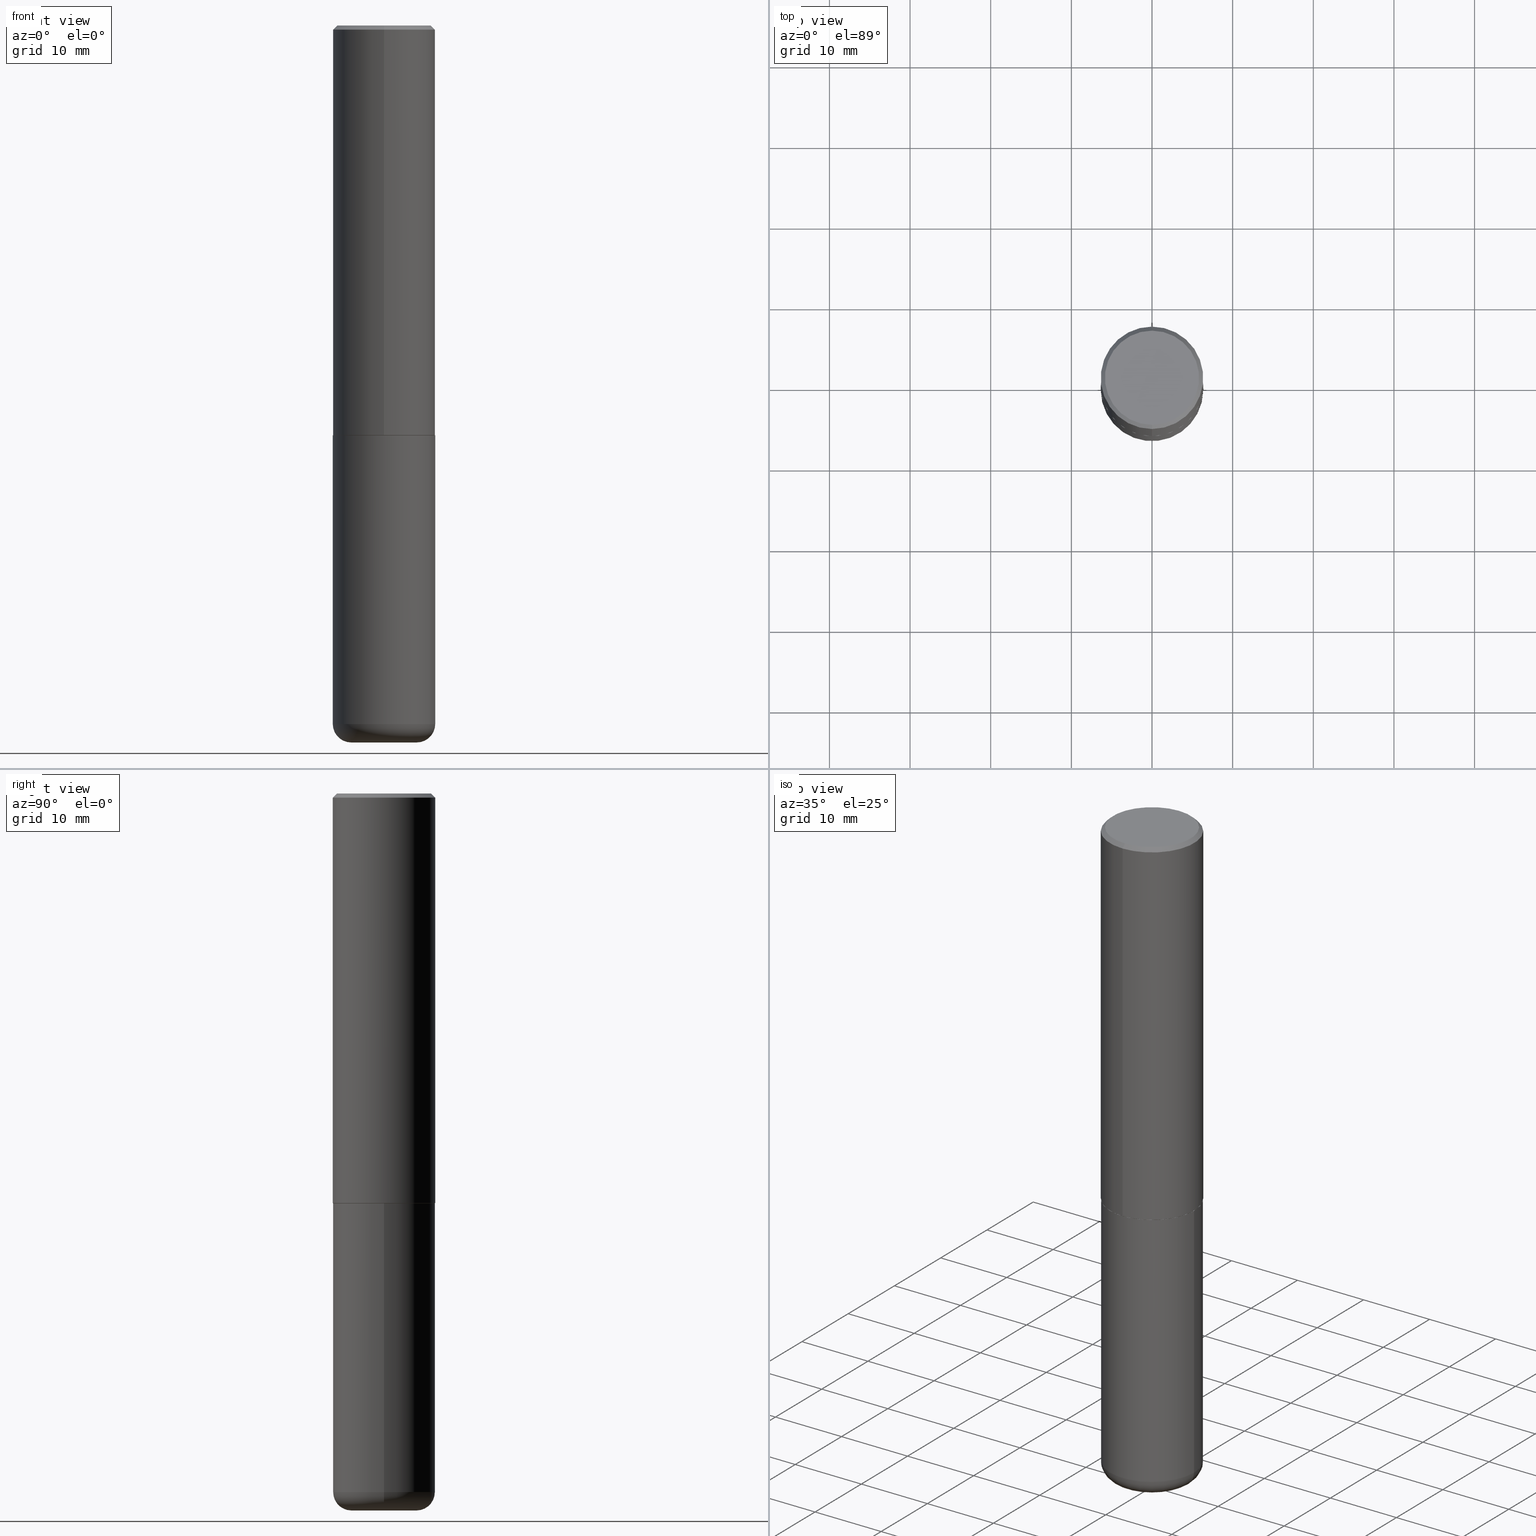
[diagram: canonical four-view strip — front | top / right | iso, engineering-drawing reading convention]
A machine part, canonical four-view strip (front | top / right | iso — engineering-drawing reading convention). The complete STEP part file that produces these views, byte-faithful:
ISO-10303-21;
HEADER;
FILE_DESCRIPTION (( 'STEP AP203' ),
    '1' );
FILE_NAME ('37547.STEP',
    '2024-03-02T04:01:04',
    ( '' ),
    ( '' ),
    'SwSTEP 2.0',
    'SolidWorks 2023',
    '' );
FILE_SCHEMA (( 'CONFIG_CONTROL_DESIGN' ));
ENDSEC;

DATA;
#1 = ORIENTED_EDGE ( 'NONE', *, *, #355, .F. ) ;
#2 = ORIENTED_EDGE ( 'NONE', *, *, #416, .F. ) ;
#3 = CC_DESIGN_DATE_AND_TIME_ASSIGNMENT ( #272, #251, ( #368 ) ) ;
#4 = DIRECTION ( 'NONE',  ( -2.445468806185136597E-29, 3.491481338843145583E-15, 1.000000000000000000 ) ) ;
#5 = TOROIDAL_SURFACE ( 'NONE', #114, 0.1600000000000000033, 0.08999999999999967748 ) ;
#6 = AXIS2_PLACEMENT_3D ( 'NONE', #207, #199, #140 ) ;
#7 = DIRECTION ( 'NONE',  ( -6.982962677686265922E-15, -1.000000000000000000, 3.483106191921935554E-15 ) ) ;
#8 = FACE_OUTER_BOUND ( 'NONE', #264, .T. ) ;
#9 = CALENDAR_DATE ( 2024, 1, 3 ) ;
#10 = CARTESIAN_POINT ( 'NONE',  ( -0.2500000000000000000, -7.668100182170457762E-15, -1.999999999999999778 ) ) ;
#11 = EDGE_CURVE ( 'NONE', #385, #120, #362, .T. ) ;
#12 = CARTESIAN_POINT ( 'NONE',  ( 4.891474366573822799E-29, -6.982194015116654415E-15, -1.999999999999999778 ) ) ;
#13 = APPROVAL_STATUS ( 'not_yet_approved' ) ;
#14 = DIRECTION ( 'NONE',  ( -2.445468806185136877E-29, 3.491481338843145188E-15, 1.000000000000000000 ) ) ;
#15 = APPROVAL ( #195, 'UNSPECIFIED' ) ;
#16 = CARTESIAN_POINT ( 'NONE',  ( 4.891474366573836672E-31, -6.982194015116674235E-17, -0.02000000000000005593 ) ) ;
#17 = APPROVAL_DATE_TIME ( #288, #40 ) ;
#18 = DIRECTION ( 'NONE',  ( -2.445737183286911680E-29, 3.491097007558327602E-15, 1.000000000000000000 ) ) ;
#19 = CONICAL_SURFACE ( 'NONE', #417, 0.2500000000000000000, 0.7853981633974481680 ) ;
#20 = AXIS2_PLACEMENT_3D ( 'NONE', #252, #403, #367 ) ;
#21 =( LENGTH_UNIT ( ) NAMED_UNIT ( * ) SI_UNIT ( $, .METRE. ) );
#22 = FACE_OUTER_BOUND ( 'NONE', #229, .T. ) ;
#23 = EDGE_CURVE ( 'NONE', #193, #260, #200, .T. ) ;
#24 = LOCAL_TIME ( 23, 1, 4.000000000000000000, #107 ) ;
#25 = AXIS2_PLACEMENT_3D ( 'NONE', #263, #389, #384 ) ;
#26 =( NAMED_UNIT ( * ) PLANE_ANGLE_UNIT ( ) SI_UNIT ( $, .RADIAN. ) );
#27 = APPLICATION_PROTOCOL_DEFINITION ( 'international standard', 'config_control_design', 1994, #128 ) ;
#28 = CC_DESIGN_APPROVAL ( #40, ( #50 ) ) ;
#29 = ORIENTED_EDGE ( 'NONE', *, *, #220, .T. ) ;
#30 = LOCAL_TIME ( 23, 1, 4.000000000000000000, #221 ) ;
#31 = ORIENTED_EDGE ( 'NONE', *, *, #108, .T. ) ;
#32 = EDGE_CURVE ( 'NONE', #236, #121, #57, .T. ) ;
#33 = ORIENTED_EDGE ( 'NONE', *, *, #300, .T. ) ;
#34 = LINE ( 'NONE', #135, #49 ) ;
#35 = CIRCLE ( 'NONE', #386, 0.08999999999999964972 ) ;
#36 = AXIS2_PLACEMENT_3D ( 'NONE', #331, #274, #143 ) ;
#37 = CARTESIAN_POINT ( 'NONE',  ( 4.890937612370272633E-29, -6.982962677686290376E-15, -1.999999999999999778 ) ) ;
#38 = PERSON_AND_ORGANIZATION_ROLE ( 'design_supplier' ) ;
#39 = DIRECTION ( 'NONE',  ( 2.438088387897960049E-29, -3.491481338843145188E-15, -1.000000000000000000 ) ) ;
#40 = APPROVAL ( #350, 'UNSPECIFIED' ) ;
#41 = DIRECTION ( 'NONE',  ( 1.000000000000000000, -6.982962677686259611E-15, 0.000000000000000000 ) ) ;
#42 = CARTESIAN_POINT ( 'NONE',  ( 0.000000000000000000, 0.000000000000000000, 0.000000000000000000 ) ) ;
#43 = FACE_OUTER_BOUND ( 'NONE', #129, .T. ) ;
#44 = CARTESIAN_POINT ( 'NONE',  ( 8.559140821647976968E-29, -1.222018468595100619E-14, -3.499999999999999112 ) ) ;
#45 = CC_DESIGN_PERSON_AND_ORGANIZATION_ASSIGNMENT ( #72, #333, ( #201 ) ) ;
#46 = FACE_OUTER_BOUND ( 'NONE', #233, .T. ) ;
#47 = CARTESIAN_POINT ( 'NONE',  ( -1.646519519465166968E-15, -0.2299999999999999822, 7.772528406023046093E-16 ) ) ;
#48 = LINE ( 'NONE', #304, #284 ) ;
#49 = VECTOR ( 'NONE', #14, 39.37007874015748143 ) ;
#50 = SECURITY_CLASSIFICATION ( '', '', #405 ) ;
#51 = EDGE_CURVE ( 'NONE', #294, #121, #136, .T. ) ;
#52 = LINE ( 'NONE', #116, #187 ) ;
#53 = ORIENTED_EDGE ( 'NONE', *, *, #183, .T. ) ;
#54 = AXIS2_PLACEMENT_3D ( 'NONE', #82, #182, #411 ) ;
#55 = CARTESIAN_POINT ( 'NONE',  ( 4.889028629390535480E-29, -6.978702918109095527E-15, -1.998999999999999666 ) ) ;
#56 = APPROVAL_ROLE ( '' ) ;
#57 = CIRCLE ( 'NONE', #240, 0.2500000000000000000 ) ;
#58 = ADVANCED_FACE ( 'NONE', ( #43 ), #306, .T. ) ;
#59 = ORIENTED_EDGE ( 'NONE', *, *, #183, .F. ) ;
#60 = ORIENTED_EDGE ( 'NONE', *, *, #119, .T. ) ;
#61 = APPROVAL_PERSON_ORGANIZATION ( #388, #15, #296 ) ;
#62 = ORIENTED_EDGE ( 'NONE', *, *, #234, .T. ) ;
#63 = CC_DESIGN_PERSON_AND_ORGANIZATION_ASSIGNMENT ( #212, #312, ( #50 ) ) ;
#64 = CARTESIAN_POINT ( 'NONE',  ( 4.891474366573836672E-31, -6.982194015116674235E-17, -0.02000000000000005593 ) ) ;
#65 = EDGE_LOOP ( 'NONE', ( #98, #358, #62, #59 ) ) ;
#66 = CARTESIAN_POINT ( 'NONE',  ( 0.1600000000000000033, -1.333745871438080791E-14, -3.499999999999999112 ) ) ;
#67 = CARTESIAN_POINT ( 'NONE',  ( -1.745740669421519543E-15, -0.2500000000000072164, -1.998999999999998778 ) ) ;
#68 = EDGE_CURVE ( 'NONE', #260, #193, #266, .T. ) ;
#69 = CARTESIAN_POINT ( 'NONE',  ( 8.339048629091315302E-29, -1.190595136545512608E-14, -3.410000000000000142 ) ) ;
#70 = DIRECTION ( 'NONE',  ( 1.000000000000000000, -6.982962677686269077E-15, 0.000000000000000000 ) ) ;
#71 = CARTESIAN_POINT ( 'NONE',  ( 1.772804125721499659E-15, 0.2489999999999930325, -2.000000000000000444 ) ) ;
#72 = PERSON_AND_ORGANIZATION ( #83, #96 ) ;
#73 = CARTESIAN_POINT ( 'NONE',  ( 4.891474366573836672E-31, -6.982194015116674235E-17, -0.02000000000000005593 ) ) ;
#74 = CC_DESIGN_PERSON_AND_ORGANIZATION_ASSIGNMENT ( #159, #262, ( #87 ) ) ;
#75 = CARTESIAN_POINT ( 'NONE',  ( -1.715124499442882299E-15, -0.2500000000000000555, -0.01999999999999918510 ) ) ;
#76 = CONICAL_SURFACE ( 'NONE', #165, 0.2489999999999999991, 0.7853981633975507526 ) ;
#77 = LOCAL_TIME ( 23, 1, 4.000000000000000000, #131 ) ;
#78 = DIRECTION ( 'NONE',  ( -2.445468806185136597E-29, 3.491481338843145583E-15, 1.000000000000000000 ) ) ;
#79 = CLOSED_SHELL ( 'NONE', ( #149, #382, #402, #345, #295, #197 ) ) ;
#80 = CARTESIAN_POINT ( 'NONE',  ( -1.738757706743831162E-15, -0.2490000000000069658, -1.999999999999998890 ) ) ;
#81 = DIRECTION ( 'NONE',  ( 6.982962677686265922E-15, 1.000000000000000000, -3.483106191921935554E-15 ) ) ;
#82 = CARTESIAN_POINT ( 'NONE',  ( 4.891474366573822799E-29, -6.982194015116654415E-15, -1.999999999999999778 ) ) ;
#83 = PERSON ( 'UNSPECIFIED', 'UNSPECIFIED', 'UNSPECIFIED', ('UNSPECIFIED'), ('UNSPECIFIED'), ('UNSPECIFIED') ) ;
#84 = ADVANCED_FACE ( 'NONE', ( #395 ), #76, .T. ) ;
#85 = CONICAL_SURFACE ( 'NONE', #342, 0.2500000000000000000, 0.7853981633974481680 ) ;
#86 = CARTESIAN_POINT ( 'NONE',  ( 1.745740669421566875E-15, 0.2499999999999999167, -0.02000000000000092676 ) ) ;
#87 = PRODUCT ( '37547', '37547', '', ( #265 ) ) ;
#88 = DIRECTION ( 'NONE',  ( -2.445737183286911680E-29, 3.491097007558327602E-15, 1.000000000000000000 ) ) ;
#89 = ORIENTED_EDGE ( 'NONE', *, *, #147, .F. ) ;
#90 = CIRCLE ( 'NONE', #163, 0.2500000000000000000 ) ;
#91 = EDGE_LOOP ( 'NONE', ( #257, #31, #353, #225 ) ) ;
#92 = CARTESIAN_POINT ( 'NONE',  ( 4.891474366573822799E-29, -6.982194015116654415E-15, -1.999999999999999778 ) ) ;
#93 = ORIENTED_EDGE ( 'NONE', *, *, #126, .F. ) ;
#94 = ADVANCED_FACE ( 'NONE', ( #396 ), #19, .T. ) ;
#95 = AXIS2_PLACEMENT_3D ( 'NONE', #173, #341, #218 ) ;
#96 = ORGANIZATION ( 'UNSPECIFIED', 'UNSPECIFIED', '' ) ;
#97 = ORIENTED_EDGE ( 'NONE', *, *, #126, .T. ) ;
#98 = ORIENTED_EDGE ( 'NONE', *, *, #307, .F. ) ;
#99 = DIRECTION ( 'NONE',  ( 1.000000000000000000, -6.982962677686259611E-15, 0.000000000000000000 ) ) ;
#100 = EDGE_CURVE ( 'NONE', #385, #413, #34, .T. ) ;
#101 = CARTESIAN_POINT ( 'NONE',  ( 1.745740669421566875E-15, 0.2499999999999999167, -0.02000000000000092676 ) ) ;
#102 = DIRECTION ( 'NONE',  ( 2.445737183286911680E-29, -3.491097007558327602E-15, -1.000000000000000000 ) ) ;
#103 = AXIS2_PLACEMENT_3D ( 'NONE', #360, #364, #70 ) ;
#104 =( GEOMETRIC_REPRESENTATION_CONTEXT ( 3 ) GLOBAL_UNCERTAINTY_ASSIGNED_CONTEXT ( ( #196 ) ) GLOBAL_UNIT_ASSIGNED_CONTEXT ( ( #254, #26, #217 ) ) REPRESENTATION_CONTEXT ( 'NONE', 'WORKASPACE' ) );
#105 = PLANE ( 'NONE',  #171 ) ;
#106 = DIRECTION ( 'NONE',  ( -6.982962677686265922E-15, -1.000000000000000000, 3.278217592397112312E-15 ) ) ;
#107 = COORDINATED_UNIVERSAL_TIME_OFFSET ( 5, 0, .BEHIND. ) ;
#108 = EDGE_CURVE ( 'NONE', #349, #115, #340, .T. ) ;
#109 = FACE_OUTER_BOUND ( 'NONE', #322, .T. ) ;
#110 = DIRECTION ( 'NONE',  ( -1.000000000000000000, 6.982962677686265922E-15, -4.876176775795935793E-29 ) ) ;
#111 = CALENDAR_DATE ( 2024, 1, 3 ) ;
#112 = DIRECTION ( 'NONE',  ( 7.105427357601001859E-15, 1.000000000000000000, -3.491481338843145583E-15 ) ) ;
#113 = CALENDAR_DATE ( 2024, 1, 3 ) ;
#114 = AXIS2_PLACEMENT_3D ( 'NONE', #245, #375, #137 ) ;
#115 = VERTEX_POINT ( 'NONE', #66 ) ;
#116 = CARTESIAN_POINT ( 'NONE',  ( -1.738757706743831162E-15, -0.2490000000000069658, -1.999999999999998890 ) ) ;
#117 = APPROVAL ( #13, 'UNSPECIFIED' ) ;
#118 = DESIGN_CONTEXT ( 'detailed design', #190, 'design' ) ;
#119 = EDGE_CURVE ( 'NONE', #155, #236, #164, .T. ) ;
#120 = VERTEX_POINT ( 'NONE', #299 ) ;
#121 = VERTEX_POINT ( 'NONE', #297 ) ;
#122 = ORIENTED_EDGE ( 'NONE', *, *, #234, .F. ) ;
#123 = ORIENTED_EDGE ( 'NONE', *, *, #307, .T. ) ;
#124 = AXIS2_PLACEMENT_3D ( 'NONE', #37, #210, #166 ) ;
#125 = ORIENTED_EDGE ( 'NONE', *, *, #323, .T. ) ;
#126 = EDGE_CURVE ( 'NONE', #120, #385, #316, .T. ) ;
#127 = VERTEX_POINT ( 'NONE', #67 ) ;
#128 = APPLICATION_CONTEXT ( 'configuration controlled 3d designs of mechanical parts and assemblies' ) ;
#129 = EDGE_LOOP ( 'NONE', ( #282, #53, #156, #258 ) ) ;
#130 = ORIENTED_EDGE ( 'NONE', *, *, #134, .T. ) ;
#131 = COORDINATED_UNIVERSAL_TIME_OFFSET ( 5, 0, .BEHIND. ) ;
#132 = CIRCLE ( 'NONE', #285, 0.1600000000000000033 ) ;
#133 = CARTESIAN_POINT ( 'NONE',  ( -1.745740669421567467E-15, -0.2500000000000001110, 8.727742518895823935E-16 ) ) ;
#134 = EDGE_CURVE ( 'NONE', #120, #391, #301, .T. ) ;
#135 = CARTESIAN_POINT ( 'NONE',  ( -0.2500000000000000000, 1.776356839400250465E-15, -1.229733772563726445E-29 ) ) ;
#136 = LINE ( 'NONE', #75, #249 ) ;
#137 = DIRECTION ( 'NONE',  ( 1.000000000000000000, -6.982962677686265133E-15, 4.883557194083112340E-29 ) ) ;
#138 = DIRECTION ( 'NONE',  ( -2.445737183286911680E-29, 3.491097007558327602E-15, 1.000000000000000000 ) ) ;
#139 = COORDINATED_UNIVERSAL_TIME_OFFSET ( 5, 0, .BEHIND. ) ;
#140 = DIRECTION ( 'NONE',  ( -6.982962677686266711E-15, -1.000000000000000000, 3.491097007558327996E-15 ) ) ;
#141 = CC_DESIGN_PERSON_AND_ORGANIZATION_ASSIGNMENT ( #174, #38, ( #201 ) ) ;
#142 = CALENDAR_DATE ( 2024, 1, 3 ) ;
#143 = DIRECTION ( 'NONE',  ( 1.000000000000000000, -6.982962677686273810E-15, 0.000000000000000000 ) ) ;
#144 = DATE_AND_TIME ( #113, #77 ) ;
#145 = DIRECTION ( 'NONE',  ( -1.000000000000000000, 6.982962677686265922E-15, -4.876176775795935793E-29 ) ) ;
#146 = EDGE_LOOP ( 'NONE', ( #33, #125, #2, #148 ) ) ;
#147 = EDGE_CURVE ( 'NONE', #413, #391, #283, .T. ) ;
#148 = ORIENTED_EDGE ( 'NONE', *, *, #191, .F. ) ;
#149 = ADVANCED_FACE ( 'NONE', ( #8 ), #369, .T. ) ;
#150 = AXIS2_PLACEMENT_3D ( 'NONE', #383, #250, #373 ) ;
#151 = PRODUCT_DEFINITION_SHAPE ( 'NONE', 'NONE',  #368 ) ;
#152 = CIRCLE ( 'NONE', #213, 0.2299999999999999822 ) ;
#153 = ORIENTED_EDGE ( 'NONE', *, *, #68, .F. ) ;
#154 = EDGE_LOOP ( 'NONE', ( #256, #293, #130, #89 ) ) ;
#155 = VERTEX_POINT ( 'NONE', #329 ) ;
#156 = ORIENTED_EDGE ( 'NONE', *, *, #191, .T. ) ;
#157 = EDGE_LOOP ( 'NONE', ( #259, #231, #60, #286 ) ) ;
#158 = ORIENTED_EDGE ( 'NONE', *, *, #300, .F. ) ;
#159 = PERSON_AND_ORGANIZATION ( #83, #96 ) ;
#160 = ORIENTED_EDGE ( 'NONE', *, *, #376, .F. ) ;
#161 = APPLICATION_PROTOCOL_DEFINITION ( 'international standard', 'config_control_design', 1994, #190 ) ;
#162 = CLOSED_SHELL ( 'NONE', ( #84, #407, #325, #94, #58, #215, #289, #248 ) ) ;
#163 = AXIS2_PLACEMENT_3D ( 'NONE', #16, #365, #222 ) ;
#164 = LINE ( 'NONE', #101, #390 ) ;
#165 = AXIS2_PLACEMENT_3D ( 'NONE', #12, #138, #359 ) ;
#166 = DIRECTION ( 'NONE',  ( 1.000000000000000000, -6.982962677686266711E-15, 0.000000000000000000 ) ) ;
#167 = DATE_AND_TIME ( #111, #412 ) ;
#168 = CYLINDRICAL_SURFACE ( 'NONE', #216, 0.2500000000000001110 ) ;
#169 = CARTESIAN_POINT ( 'NONE',  ( 4.889028629390535480E-29, -6.978702918109095527E-15, -1.998999999999999666 ) ) ;
#170 = FACE_OUTER_BOUND ( 'NONE', #232, .T. ) ;
#171 = AXIS2_PLACEMENT_3D ( 'NONE', #243, #39, #145 ) ;
#172 = DIRECTION ( 'NONE',  ( -6.982962677686265922E-15, -1.000000000000000000, 3.278217592397112312E-15 ) ) ;
#173 = CARTESIAN_POINT ( 'NONE',  ( 1.606081415867841067E-15, 0.2299999999999999822, -8.158020473064706174E-16 ) ) ;
#174 = PERSON_AND_ORGANIZATION ( #83, #96 ) ;
#175 = CARTESIAN_POINT ( 'NONE',  ( 0.000000000000000000, 0.000000000000000000, 0.000000000000000000 ) ) ;
#176 = EDGE_CURVE ( 'NONE', #115, #349, #132, .T. ) ;
#177 = ORIENTED_EDGE ( 'NONE', *, *, #416, .T. ) ;
#178 = FACE_OUTER_BOUND ( 'NONE', #154, .T. ) ;
#179 = DIRECTION ( 'NONE',  ( -6.982962677686265922E-15, -1.000000000000000000, 3.491097007558327207E-15 ) ) ;
#180 = AXIS2_PLACEMENT_3D ( 'NONE', #92, #88, #357 ) ;
#181 = AXIS2_PLACEMENT_3D ( 'NONE', #309, #18, #287 ) ;
#182 = DIRECTION ( 'NONE',  ( -2.445737183286911680E-29, 3.491097007558327602E-15, 1.000000000000000000 ) ) ;
#183 = EDGE_CURVE ( 'NONE', #198, #127, #409, .T. ) ;
#184 = DIRECTION ( 'NONE',  ( -1.000000000000000000, 7.105427357600996337E-15, 0.000000000000000000 ) ) ;
#185 = DATE_TIME_ROLE ( 'classification_date' ) ;
#186 = CARTESIAN_POINT ( 'NONE',  ( 0.000000000000000000, 0.000000000000000000, 0.000000000000000000 ) ) ;
#187 = VECTOR ( 'NONE', #381, 39.37007874015748143 ) ;
#188 = CC_DESIGN_SECURITY_CLASSIFICATION ( #50, ( #201 ) ) ;
#189 = ORIENTED_EDGE ( 'NONE', *, *, #108, .F. ) ;
#190 = APPLICATION_CONTEXT ( 'configuration controlled 3d designs of mechanical parts and assemblies' ) ;
#191 = EDGE_CURVE ( 'NONE', #127, #121, #244, .T. ) ;
#192 = EDGE_LOOP ( 'NONE', ( #29, #261 ) ) ;
#193 = VERTEX_POINT ( 'NONE', #71 ) ;
#194 = CC_DESIGN_APPROVAL ( #117, ( #201 ) ) ;
#195 = APPROVAL_STATUS ( 'not_yet_approved' ) ;
#196 = UNCERTAINTY_MEASURE_WITH_UNIT (LENGTH_MEASURE( 1.000000000000000082E-05 ), #254, 'distance_accuracy_value', 'NONE');
#197 = ADVANCED_FACE ( 'NONE', ( #170 ), #277, .T. ) ;
#198 = VERTEX_POINT ( 'NONE', #246 ) ;
#199 = DIRECTION ( 'NONE',  ( -2.445737183286911680E-29, 3.491097007558327602E-15, 1.000000000000000000 ) ) ;
#200 = CIRCLE ( 'NONE', #180, 0.2489999999999999991 ) ;
#201 = PRODUCT_DEFINITION_FORMATION_WITH_SPECIFIED_SOURCE ( 'ANY', '', #87, .NOT_KNOWN. ) ;
#202 = CARTESIAN_POINT ( 'NONE',  ( 0.2500000000000000000, -1.745740669421566678E-15, 1.219044193948983948E-29 ) ) ;
#203 = ORIENTED_EDGE ( 'NONE', *, *, #317, .T. ) ;
#204 = DIRECTION ( 'NONE',  ( 1.000000000000000000, -6.982962677686266711E-15, 4.876176775795935793E-29 ) ) ;
#205 = APPROVAL_DATE_TIME ( #144, #15 ) ;
#206 = FACE_OUTER_BOUND ( 'NONE', #408, .T. ) ;
#207 = CARTESIAN_POINT ( 'NONE',  ( 0.000000000000000000, 0.000000000000000000, 0.000000000000000000 ) ) ;
#208 = APPROVAL_ROLE ( '' ) ;
#209 = DIRECTION ( 'NONE',  ( -2.445468806185136597E-29, 3.491481338843145583E-15, 1.000000000000000000 ) ) ;
#210 = DIRECTION ( 'NONE',  ( -2.445468806185136597E-29, 3.491481338843145583E-15, 1.000000000000000000 ) ) ;
#211 = AXIS2_PLACEMENT_3D ( 'NONE', #186, #270, #354 ) ;
#212 = PERSON_AND_ORGANIZATION ( #83, #96 ) ;
#213 = AXIS2_PLACEMENT_3D ( 'NONE', #346, #339, #179 ) ;
#214 = CYLINDRICAL_SURFACE ( 'NONE', #392, 0.2500000000000000000 ) ;
#215 = ADVANCED_FACE ( 'NONE', ( #280 ), #398, .T. ) ;
#216 = AXIS2_PLACEMENT_3D ( 'NONE', #175, #313, #302 ) ;
#217 =( NAMED_UNIT ( * ) SI_UNIT ( $, .STERADIAN. ) SOLID_ANGLE_UNIT ( ) );
#218 = DIRECTION ( 'NONE',  ( 6.982962677686265922E-15, 1.000000000000000000, -3.491097007558327602E-15 ) ) ;
#219 = LENGTH_MEASURE_WITH_UNIT ( LENGTH_MEASURE( 0.02539999999999999897 ), #21 );
#220 = EDGE_CURVE ( 'NONE', #155, #294, #152, .T. ) ;
#221 = COORDINATED_UNIVERSAL_TIME_OFFSET ( 5, 0, .BEHIND. ) ;
#222 = DIRECTION ( 'NONE',  ( -6.982962677686265922E-15, -1.000000000000000000, 3.483106191921935554E-15 ) ) ;
#223 = DIRECTION ( 'NONE',  ( -2.445737183286911680E-29, 3.491097007558327602E-15, 1.000000000000000000 ) ) ;
#224 = DATE_AND_TIME ( #9, #372 ) ;
#225 = ORIENTED_EDGE ( 'NONE', *, *, #11, .F. ) ;
#226 = AXIS2_PLACEMENT_3D ( 'NONE', #44, #332, #99 ) ;
#227 = AXIS2_PLACEMENT_3D ( 'NONE', #169, #303, #106 ) ;
#228 = CC_DESIGN_PERSON_AND_ORGANIZATION_ASSIGNMENT ( #308, #330, ( #368 ) ) ;
#229 = EDGE_LOOP ( 'NONE', ( #153, #253 ) ) ;
#230 = ORIENTED_EDGE ( 'NONE', *, *, #147, .T. ) ;
#231 = ORIENTED_EDGE ( 'NONE', *, *, #220, .F. ) ;
#232 = EDGE_LOOP ( 'NONE', ( #290, #189 ) ) ;
#233 = EDGE_LOOP ( 'NONE', ( #203, #230 ) ) ;
#234 = EDGE_CURVE ( 'NONE', #260, #127, #52, .T. ) ;
#235 = VECTOR ( 'NONE', #338, 39.37007874015748143 ) ;
#236 = VERTEX_POINT ( 'NONE', #86 ) ;
#237 = DIRECTION ( 'NONE',  ( -2.445737183286911680E-29, 3.491097007558327602E-15, 1.000000000000000000 ) ) ;
#238 = DIRECTION ( 'NONE',  ( 4.937700262164546464E-15, 0.7071067811865447972, -0.7071067811865500152 ) ) ;
#239 = PERSON_AND_ORGANIZATION ( #83, #96 ) ;
#240 = AXIS2_PLACEMENT_3D ( 'NONE', #64, #223, #7 ) ;
#241 = CC_DESIGN_APPROVAL ( #15, ( #368 ) ) ;
#242 = DIRECTION ( 'NONE',  ( 6.982962677686265922E-15, 1.000000000000000000, -3.483106191921935554E-15 ) ) ;
#243 = CARTESIAN_POINT ( 'NONE',  ( 4.890937612370272633E-29, -6.982962677686290376E-15, -1.999999999999999778 ) ) ;
#244 = LINE ( 'NONE', #133, #334 ) ;
#245 = CARTESIAN_POINT ( 'NONE',  ( 8.339048629091315302E-29, -1.190595136545512608E-14, -3.410000000000000142 ) ) ;
#246 = CARTESIAN_POINT ( 'NONE',  ( 1.776356839400276103E-15, 0.2499999999999933109, -1.999000000000000554 ) ) ;
#247 = CARTESIAN_POINT ( 'NONE',  ( -0.1600000000000000033, -1.060645541739486182E-14, -3.499999999999999112 ) ) ;
#248 = ADVANCED_FACE ( 'NONE', ( #255 ), #344, .F. ) ;
#249 = VECTOR ( 'NONE', #273, 39.37007874015748854 ) ;
#250 = DIRECTION ( 'NONE',  ( -2.445737183286911400E-29, 3.491097007558327602E-15, 1.000000000000000000 ) ) ;
#251 = DATE_TIME_ROLE ( 'creation_date' ) ;
#252 = CARTESIAN_POINT ( 'NONE',  ( 4.890937612370272633E-29, -6.982962677686290376E-15, -1.999999999999999778 ) ) ;
#253 = ORIENTED_EDGE ( 'NONE', *, *, #23, .F. ) ;
#254 =( CONVERSION_BASED_UNIT ( 'INCH', #219 ) LENGTH_UNIT ( ) NAMED_UNIT ( #343 ) );
#255 = FACE_OUTER_BOUND ( 'NONE', #192, .T. ) ;
#256 = ORIENTED_EDGE ( 'NONE', *, *, #100, .F. ) ;
#257 = ORIENTED_EDGE ( 'NONE', *, *, #278, .F. ) ;
#258 = ORIENTED_EDGE ( 'NONE', *, *, #32, .F. ) ;
#259 = ORIENTED_EDGE ( 'NONE', *, *, #51, .F. ) ;
#260 = VERTEX_POINT ( 'NONE', #80 ) ;
#261 = ORIENTED_EDGE ( 'NONE', *, *, #355, .T. ) ;
#262 = PERSON_AND_ORGANIZATION_ROLE ( 'design_owner' ) ;
#263 = CARTESIAN_POINT ( 'NONE',  ( 8.339048629091315302E-29, -1.190595136545512608E-14, -3.410000000000000142 ) ) ;
#264 = EDGE_LOOP ( 'NONE', ( #97, #292, #351, #310 ) ) ;
#265 = MECHANICAL_CONTEXT ( 'NONE', #128, 'mechanical' ) ;
#266 = CIRCLE ( 'NONE', #352, 0.2489999999999999991 ) ;
#267 = AXIS2_PLACEMENT_3D ( 'NONE', #69, #78, #370 ) ;
#268 = VECTOR ( 'NONE', #327, 39.37007874015748143 ) ;
#269 = DIRECTION ( 'NONE',  ( 2.438088387897960049E-29, -3.491481338843145188E-15, -1.000000000000000000 ) ) ;
#270 = DIRECTION ( 'NONE',  ( 0.000000000000000000, 0.000000000000000000, 1.000000000000000000 ) ) ;
#271 = DIRECTION ( 'NONE',  ( -6.982962677686265133E-15, -1.000000000000000000, 3.291383124896702687E-15 ) ) ;
#272 = DATE_AND_TIME ( #142, #24 ) ;
#273 = DIRECTION ( 'NONE',  ( -4.851104656540962697E-15, -0.7071067811865497932, -0.7071067811865451302 ) ) ;
#274 = DIRECTION ( 'NONE',  ( -6.982962677686266711E-15, -1.000000000000000000, 3.491481338843145583E-15 ) ) ;
#275 = CARTESIAN_POINT ( 'NONE',  ( 0.000000000000000000, 0.000000000000000000, 0.000000000000000000 ) ) ;
#276 = DIRECTION ( 'NONE',  ( 5.024295867788576727E-15, 0.7071067811866224018, 0.7071067811864726327 ) ) ;
#277 = PLANE ( 'NONE',  #371 ) ;
#278 = EDGE_CURVE ( 'NONE', #349, #385, #35, .T. ) ;
#279 = DIRECTION ( 'NONE',  ( -2.445737183286911680E-29, 3.491097007558327602E-15, 1.000000000000000000 ) ) ;
#280 = FACE_OUTER_BOUND ( 'NONE', #65, .T. ) ;
#281 = LINE ( 'NONE', #328, #235 ) ;
#282 = ORIENTED_EDGE ( 'NONE', *, *, #323, .F. ) ;
#283 = CIRCLE ( 'NONE', #124, 0.2500000000000000000 ) ;
#284 = VECTOR ( 'NONE', #276, 39.37007874015748143 ) ;
#285 = AXIS2_PLACEMENT_3D ( 'NONE', #336, #4, #41 ) ;
#286 = ORIENTED_EDGE ( 'NONE', *, *, #32, .T. ) ;
#287 = DIRECTION ( 'NONE',  ( -6.982962677686265922E-15, -1.000000000000000000, 3.491097007558327207E-15 ) ) ;
#288 = DATE_AND_TIME ( #410, #30 ) ;
#289 = ADVANCED_FACE ( 'NONE', ( #22 ), #291, .F. ) ;
#290 = ORIENTED_EDGE ( 'NONE', *, *, #176, .F. ) ;
#291 = PLANE ( 'NONE',  #150 ) ;
#292 = ORIENTED_EDGE ( 'NONE', *, *, #100, .T. ) ;
#293 = ORIENTED_EDGE ( 'NONE', *, *, #11, .T. ) ;
#294 = VERTEX_POINT ( 'NONE', #47 ) ;
#295 = ADVANCED_FACE ( 'NONE', ( #314 ), #5, .T. ) ;
#296 = APPROVAL_ROLE ( '' ) ;
#297 = CARTESIAN_POINT ( 'NONE',  ( -1.715124499442882299E-15, -0.2500000000000000555, -0.01999999999999918510 ) ) ;
#298 = APPROVAL_PERSON_ORGANIZATION ( #377, #40, #56 ) ;
#299 = CARTESIAN_POINT ( 'NONE',  ( 0.2499999999999998612, -1.365169203487669276E-14, -3.410000000000000142 ) ) ;
#300 = EDGE_CURVE ( 'NONE', #127, #198, #393, .T. ) ;
#301 = LINE ( 'NONE', #202, #268 ) ;
#302 = DIRECTION ( 'NONE',  ( -6.982962677686266711E-15, -1.000000000000000000, 3.491097007558327996E-15 ) ) ;
#303 = DIRECTION ( 'NONE',  ( -2.445737183286911680E-29, 3.491097007558327602E-15, 1.000000000000000000 ) ) ;
#304 = CARTESIAN_POINT ( 'NONE',  ( 1.769251412042698169E-15, 0.2489999999999930325, -2.000000000000000444 ) ) ;
#305 = TOROIDAL_SURFACE ( 'NONE', #267, 0.1600000000000000033, 0.08999999999999967748 ) ;
#306 = CYLINDRICAL_SURFACE ( 'NONE', #6, 0.2500000000000001110 ) ;
#307 = EDGE_CURVE ( 'NONE', #193, #198, #48, .T. ) ;
#308 = PERSON_AND_ORGANIZATION ( #83, #96 ) ;
#309 = CARTESIAN_POINT ( 'NONE',  ( 6.285415214839433991E-46, -8.971934677910720830E-32, -2.569947113611056727E-17 ) ) ;
#310 = ORIENTED_EDGE ( 'NONE', *, *, #134, .F. ) ;
#311 = CARTESIAN_POINT ( 'NONE',  ( -0.1600000000000000033, -1.076908298823896635E-14, -3.410000000000000142 ) ) ;
#312 = PERSON_AND_ORGANIZATION_ROLE ( 'classification_officer' ) ;
#313 = DIRECTION ( 'NONE',  ( -2.445737183286911680E-29, 3.491097007558327602E-15, 1.000000000000000000 ) ) ;
#314 = FACE_OUTER_BOUND ( 'NONE', #91, .T. ) ;
#315 = DIRECTION ( 'NONE',  ( 1.000000000000000000, -6.982962677686266711E-15, 4.876176775795935793E-29 ) ) ;
#316 = CIRCLE ( 'NONE', #103, 0.2500000000000000555 ) ;
#317 = EDGE_CURVE ( 'NONE', #391, #413, #400, .T. ) ;
#318 = ADVANCED_BREP_SHAPE_REPRESENTATION ( '37547', ( #379, #378, #211 ), #104 ) ;
#319 = PRODUCT_RELATED_PRODUCT_CATEGORY ( 'detail', '', ( #87 ) ) ;
#320 = APPROVAL_PERSON_ORGANIZATION ( #239, #117, #208 ) ;
#321 = ORIENTED_EDGE ( 'NONE', *, *, #176, .T. ) ;
#322 = EDGE_LOOP ( 'NONE', ( #1, #418, #177, #414 ) ) ;
#323 = EDGE_CURVE ( 'NONE', #198, #236, #281, .T. ) ;
#324 = CARTESIAN_POINT ( 'NONE',  ( 4.891474366573836672E-31, -6.982194015116674235E-17, -0.02000000000000005593 ) ) ;
#325 = ADVANCED_FACE ( 'NONE', ( #109 ), #85, .T. ) ;
#326 = AXIS2_PLACEMENT_3D ( 'NONE', #275, #397, #204 ) ;
#327 = DIRECTION ( 'NONE',  ( -2.445468806185136877E-29, 3.491481338843145188E-15, 1.000000000000000000 ) ) ;
#328 = CARTESIAN_POINT ( 'NONE',  ( 1.776356839400251254E-15, 0.2500000000000001110, -8.727742518895823935E-16 ) ) ;
#329 = CARTESIAN_POINT ( 'NONE',  ( 1.675911042644703774E-15, 0.2299999999999999822, -8.286517828745257562E-16 ) ) ;
#330 = PERSON_AND_ORGANIZATION_ROLE ( 'creator' ) ;
#331 = CARTESIAN_POINT ( 'NONE',  ( 0.1600000000000000033, -1.302322539388492780E-14, -3.410000000000000142 ) ) ;
#332 = DIRECTION ( 'NONE',  ( -2.445468806185136597E-29, 3.491481338843145583E-15, 1.000000000000000000 ) ) ;
#333 = PERSON_AND_ORGANIZATION_ROLE ( 'creator' ) ;
#334 = VECTOR ( 'NONE', #366, 39.37007874015748143 ) ;
#335 = CIRCLE ( 'NONE', #181, 0.2299999999999999822 ) ;
#336 = CARTESIAN_POINT ( 'NONE',  ( 8.559140821647976968E-29, -1.222018468595100619E-14, -3.499999999999999112 ) ) ;
#337 = CARTESIAN_POINT ( 'NONE',  ( -0.2499999999999998612, -1.012959452605487719E-14, -3.410000000000000142 ) ) ;
#338 = DIRECTION ( 'NONE',  ( -2.445737183286911680E-29, 3.491097007558327602E-15, 1.000000000000000000 ) ) ;
#339 = DIRECTION ( 'NONE',  ( -2.445737183286911680E-29, 3.491097007558327602E-15, 1.000000000000000000 ) ) ;
#340 = CIRCLE ( 'NONE', #226, 0.1600000000000000033 ) ;
#341 = DIRECTION ( 'NONE',  ( 2.445737183286911400E-29, -3.491097007558327602E-15, -1.000000000000000000 ) ) ;
#342 = AXIS2_PLACEMENT_3D ( 'NONE', #73, #406, #81 ) ;
#343 = DIMENSIONAL_EXPONENTS ( 1.000000000000000000, 0.000000000000000000, 0.000000000000000000, 0.000000000000000000, 0.000000000000000000, 0.000000000000000000, 0.000000000000000000 ) ;
#344 = PLANE ( 'NONE',  #95 ) ;
#345 = ADVANCED_FACE ( 'NONE', ( #178 ), #214, .T. ) ;
#346 = CARTESIAN_POINT ( 'NONE',  ( 6.285415214839433991E-46, -8.971934677910720830E-32, -2.569947113611056727E-17 ) ) ;
#347 = SHAPE_DEFINITION_REPRESENTATION ( #151, #318 ) ;
#348 = AXIS2_PLACEMENT_3D ( 'NONE', #55, #279, #172 ) ;
#349 = VERTEX_POINT ( 'NONE', #247 ) ;
#350 = APPROVAL_STATUS ( 'not_yet_approved' ) ;
#351 = ORIENTED_EDGE ( 'NONE', *, *, #317, .F. ) ;
#352 = AXIS2_PLACEMENT_3D ( 'NONE', #401, #237, #271 ) ;
#353 = ORIENTED_EDGE ( 'NONE', *, *, #376, .T. ) ;
#354 = DIRECTION ( 'NONE',  ( 1.000000000000000000, 0.000000000000000000, 0.000000000000000000 ) ) ;
#355 = EDGE_CURVE ( 'NONE', #294, #155, #335, .T. ) ;
#356 = ORIENTED_EDGE ( 'NONE', *, *, #68, .T. ) ;
#357 = DIRECTION ( 'NONE',  ( -6.982962677686265133E-15, -1.000000000000000000, 3.291383124896702687E-15 ) ) ;
#358 = ORIENTED_EDGE ( 'NONE', *, *, #23, .T. ) ;
#359 = DIRECTION ( 'NONE',  ( -6.982962677686265133E-15, -1.000000000000000000, 3.291383124896702687E-15 ) ) ;
#360 = CARTESIAN_POINT ( 'NONE',  ( 8.339048629091315302E-29, -1.190595136545512608E-14, -3.410000000000000142 ) ) ;
#361 = APPROVAL_DATE_TIME ( #167, #117 ) ;
#362 = CIRCLE ( 'NONE', #25, 0.2500000000000000555 ) ;
#363 = FACE_OUTER_BOUND ( 'NONE', #146, .T. ) ;
#364 = DIRECTION ( 'NONE',  ( -2.445468806185136597E-29, 3.491481338843145583E-15, 1.000000000000000000 ) ) ;
#365 = DIRECTION ( 'NONE',  ( -2.445737183286911680E-29, 3.491097007558327602E-15, 1.000000000000000000 ) ) ;
#366 = DIRECTION ( 'NONE',  ( -2.445737183286911680E-29, 3.491097007558327602E-15, 1.000000000000000000 ) ) ;
#367 = DIRECTION ( 'NONE',  ( 1.000000000000000000, -6.982962677686266711E-15, 0.000000000000000000 ) ) ;
#368 = PRODUCT_DEFINITION ( 'UNKNOWN', '', #201, #118 ) ;
#369 = CYLINDRICAL_SURFACE ( 'NONE', #326, 0.2500000000000000000 ) ;
#370 = DIRECTION ( 'NONE',  ( 1.000000000000000000, -6.982962677686265133E-15, 4.883557194083112340E-29 ) ) ;
#371 = AXIS2_PLACEMENT_3D ( 'NONE', #404, #269, #110 ) ;
#372 = LOCAL_TIME ( 23, 1, 4.000000000000000000, #374 ) ;
#373 = DIRECTION ( 'NONE',  ( -6.982962677686265922E-15, -1.000000000000000000, 3.491097007558327602E-15 ) ) ;
#374 = COORDINATED_UNIVERSAL_TIME_OFFSET ( 5, 0, .BEHIND. ) ;
#375 = DIRECTION ( 'NONE',  ( -2.445468806185136597E-29, 3.491481338843145583E-15, 1.000000000000000000 ) ) ;
#376 = EDGE_CURVE ( 'NONE', #115, #120, #380, .T. ) ;
#377 = PERSON_AND_ORGANIZATION ( #83, #96 ) ;
#378 = MANIFOLD_SOLID_BREP ( 'Body-Move/Copy2[2]', #162 ) ;
#379 = MANIFOLD_SOLID_BREP ( 'Body-Move/Copy2[1]', #79 ) ;
#380 = CIRCLE ( 'NONE', #36, 0.08999999999999964972 ) ;
#381 = DIRECTION ( 'NONE',  ( -4.937700262165053702E-15, -0.7071067811866175168, 0.7071067811864775177 ) ) ;
#382 = ADVANCED_FACE ( 'NONE', ( #206 ), #305, .T. ) ;
#383 = CARTESIAN_POINT ( 'NONE',  ( 4.891474366573822799E-29, -6.982194015116654415E-15, -1.999999999999999778 ) ) ;
#384 = DIRECTION ( 'NONE',  ( 1.000000000000000000, -6.982962677686269077E-15, 0.000000000000000000 ) ) ;
#385 = VERTEX_POINT ( 'NONE', #337 ) ;
#386 = AXIS2_PLACEMENT_3D ( 'NONE', #311, #112, #184 ) ;
#387 = ORIENTED_EDGE ( 'NONE', *, *, #278, .T. ) ;
#388 = PERSON_AND_ORGANIZATION ( #83, #96 ) ;
#389 = DIRECTION ( 'NONE',  ( -2.445468806185136597E-29, 3.491481338843145583E-15, 1.000000000000000000 ) ) ;
#390 = VECTOR ( 'NONE', #238, 39.37007874015748854 ) ;
#391 = VERTEX_POINT ( 'NONE', #399 ) ;
#392 = AXIS2_PLACEMENT_3D ( 'NONE', #42, #209, #315 ) ;
#393 = CIRCLE ( 'NONE', #348, 0.2500000000000002776 ) ;
#394 = CC_DESIGN_DATE_AND_TIME_ASSIGNMENT ( #224, #185, ( #50 ) ) ;
#395 = FACE_OUTER_BOUND ( 'NONE', #415, .T. ) ;
#396 = FACE_OUTER_BOUND ( 'NONE', #157, .T. ) ;
#397 = DIRECTION ( 'NONE',  ( -2.445468806185136597E-29, 3.491481338843145583E-15, 1.000000000000000000 ) ) ;
#398 = CONICAL_SURFACE ( 'NONE', #54, 0.2489999999999999991, 0.7853981633975507526 ) ;
#399 = CARTESIAN_POINT ( 'NONE',  ( 0.2500000000000000000, -8.728703347107857054E-15, -1.999999999999999778 ) ) ;
#400 = CIRCLE ( 'NONE', #20, 0.2500000000000000000 ) ;
#401 = CARTESIAN_POINT ( 'NONE',  ( 4.891474366573822799E-29, -6.982194015116654415E-15, -1.999999999999999778 ) ) ;
#402 = ADVANCED_FACE ( 'NONE', ( #46 ), #105, .F. ) ;
#403 = DIRECTION ( 'NONE',  ( -2.445468806185136597E-29, 3.491481338843145583E-15, 1.000000000000000000 ) ) ;
#404 = CARTESIAN_POINT ( 'NONE',  ( 1.690506257577845460E-28, -2.683497136698531760E-16, -3.499999999999999112 ) ) ;
#405 = SECURITY_CLASSIFICATION_LEVEL ( 'unclassified' ) ;
#406 = DIRECTION ( 'NONE',  ( 2.445737183286911680E-29, -3.491097007558327602E-15, -1.000000000000000000 ) ) ;
#407 = ADVANCED_FACE ( 'NONE', ( #363 ), #168, .T. ) ;
#408 = EDGE_LOOP ( 'NONE', ( #321, #387, #93, #160 ) ) ;
#409 = CIRCLE ( 'NONE', #227, 0.2500000000000002776 ) ;
#410 = CALENDAR_DATE ( 2024, 1, 3 ) ;
#411 = DIRECTION ( 'NONE',  ( -6.982962677686265133E-15, -1.000000000000000000, 3.291383124896702687E-15 ) ) ;
#412 = LOCAL_TIME ( 23, 1, 4.000000000000000000, #139 ) ;
#413 = VERTEX_POINT ( 'NONE', #10 ) ;
#414 = ORIENTED_EDGE ( 'NONE', *, *, #119, .F. ) ;
#415 = EDGE_LOOP ( 'NONE', ( #356, #123, #158, #122 ) ) ;
#416 = EDGE_CURVE ( 'NONE', #121, #236, #90, .T. ) ;
#417 = AXIS2_PLACEMENT_3D ( 'NONE', #324, #102, #242 ) ;
#418 = ORIENTED_EDGE ( 'NONE', *, *, #51, .T. ) ;
ENDSEC;
END-ISO-10303-21;
